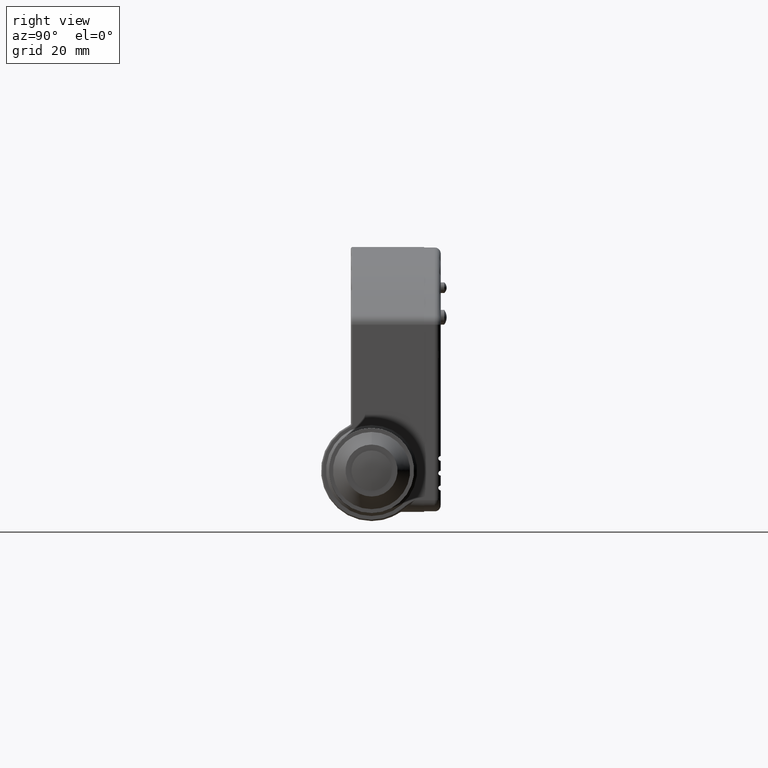
[diagram: clean part render]
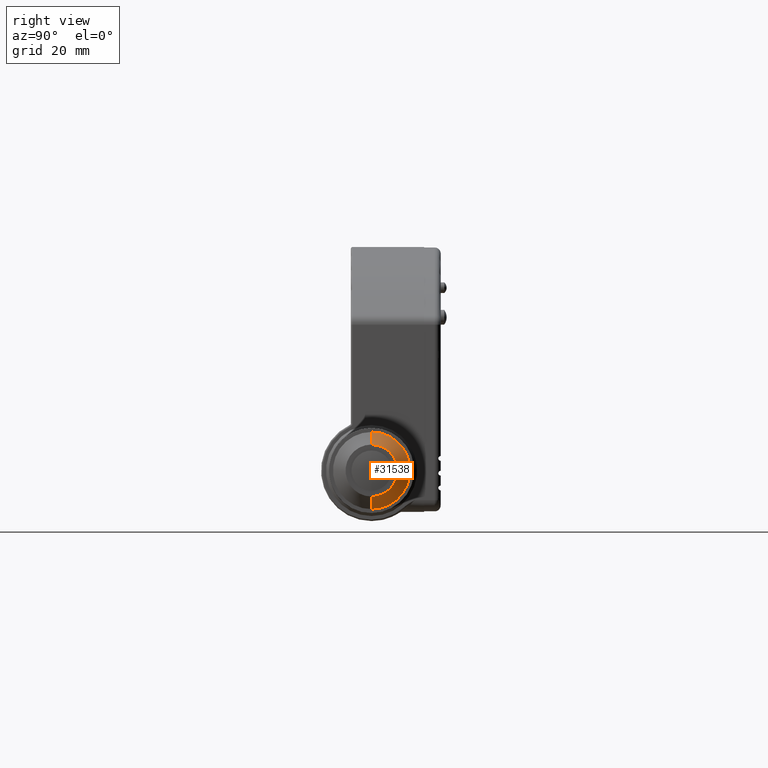
[diagram: same view with one face highlighted and labeled with its STEP entity id]
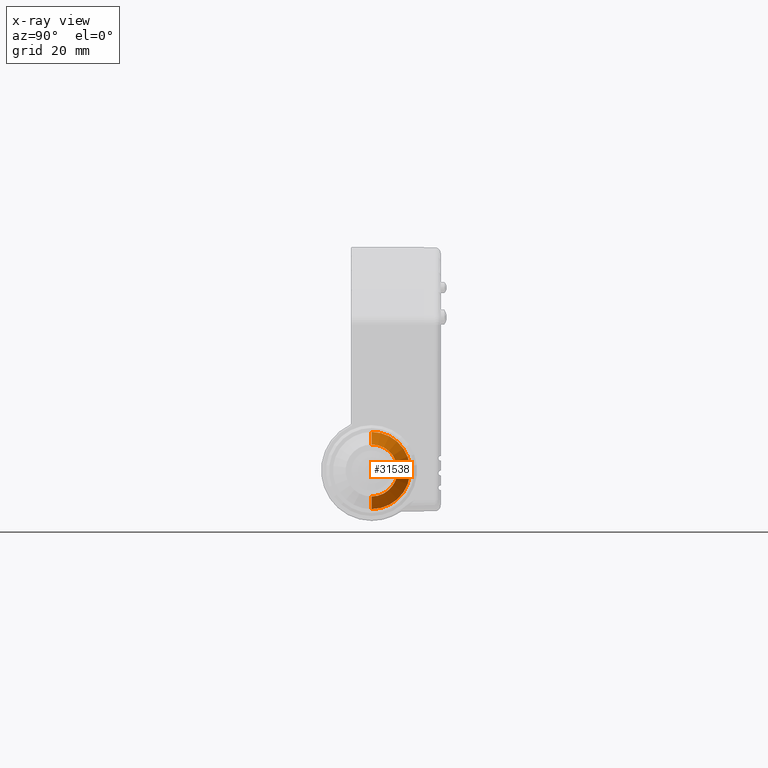
[diagram: x-ray of the same camera — body ghosted, the highlighted face saturated]
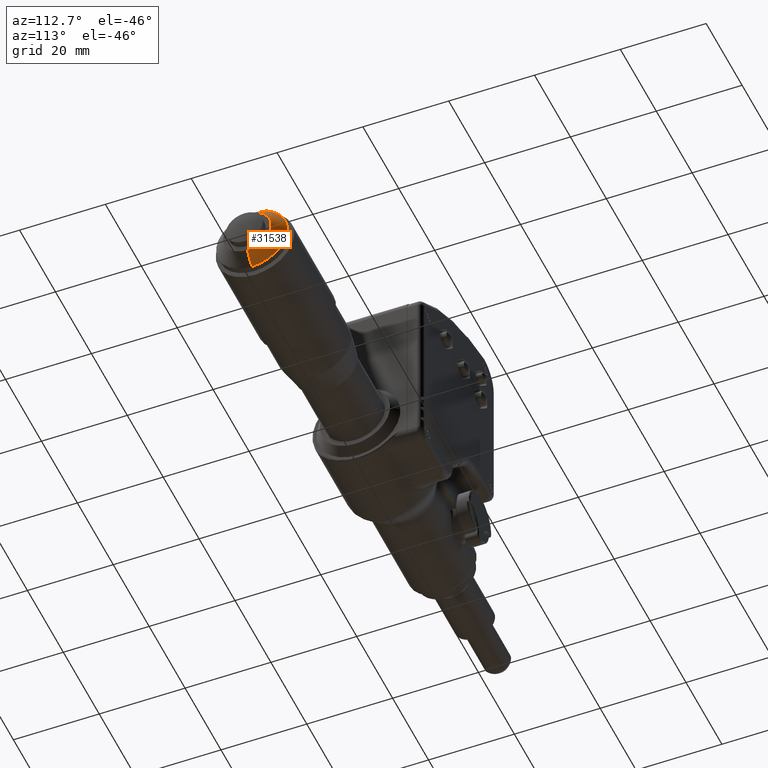
[diagram: same view with one face highlighted and labeled with its STEP entity id]
A machine part, right view. The second image highlights one B-rep face of the part: STEP entity #31538.
The next image is the same camera in x-ray: the body ghosted, the highlighted face saturated — about 0% of this face is hidden behind the body in this view.
A second angle (auxiliary view) of the same face is appended — the face is thin or edge-on in the first view.
In plain terms, the highlighted toroidal blend (fillet) surface has major radius 19.9018 mm and minor (blend) radius 19.05 mm.
Its self-contained STEP definition (entity closure, byte-faithful):
#31322 = EDGE_CURVE ( 'NONE', #31324, #31326, #46430, .T. ) ;
#31324 = VERTEX_POINT ( 'NONE', #46424 ) ;
#31326 = VERTEX_POINT ( 'NONE', #46423 ) ;
#31450 = EDGE_CURVE ( 'NONE', #31326, #31452, #46779, .T. ) ;
#31452 = VERTEX_POINT ( 'NONE', #46775 ) ;
#31457 = VERTEX_POINT ( 'NONE', #46769 ) ;
#31459 = EDGE_CURVE ( 'NONE', #31324, #31457, #46767, .T. ) ;
#31494 = ORIENTED_EDGE ( 'NONE', *, *, #31450, .F. ) ;
#31496 = ORIENTED_EDGE ( 'NONE', *, *, #31322, .F. ) ;
#31498 = ORIENTED_EDGE ( 'NONE', *, *, #31459, .T. ) ;
#31500 = ORIENTED_EDGE ( 'NONE', *, *, #31526, .T. ) ;
#31526 = EDGE_CURVE ( 'NONE', #31457, #31452, #46940, .T. ) ;
#31538 = ADVANCED_FACE ( 'NONE', ( #46935 ), #46917, .F. ) ;
#31541 = EDGE_LOOP ( 'NONE', ( #31494, #31496, #31498, #31500 ) ) ;
#46423 = CARTESIAN_POINT ( 'NONE',  ( 4.185000000000000500, 4.002221379989768000E-017, -0.3268169699999997100 ) ) ;
#46424 = CARTESIAN_POINT ( 'NONE',  ( 4.185000000000000500, 0.0000000000000000000, 0.3268169699999997100 ) ) ;
#46425 = DIRECTION ( 'NONE',  ( 0.0000000000000000000, 0.0000000000000000000, 1.000000000000000000 ) ) ;
#46426 = DIRECTION ( 'NONE',  ( -1.000000000000000000, 0.0000000000000000000, 0.0000000000000000000 ) ) ;
#46428 = CARTESIAN_POINT ( 'NONE',  ( 4.185000000000000500, 0.0000000000000000000, 0.0000000000000000000 ) ) ;
#46429 = AXIS2_PLACEMENT_3D ( 'NONE', #46428, #46426, #46425 ) ;
#46430 = CIRCLE ( 'NONE', #46429, 0.3268169700000001500 ) ;
#46763 = DIRECTION ( 'NONE',  ( 0.0000000000000000000, 0.0000000000000000000, -1.000000000000000000 ) ) ;
#46764 = DIRECTION ( 'NONE',  ( 0.0000000000000000000, -1.000000000000000000, 0.0000000000000000000 ) ) ;
#46765 = CARTESIAN_POINT ( 'NONE',  ( 4.779901991869283300, 0.0000000000000000000, 0.7835352858906146100 ) ) ;
#46766 = AXIS2_PLACEMENT_3D ( 'NONE', #46765, #46764, #46763 ) ;
#46767 = CIRCLE ( 'NONE', #46766, 0.7500000000000002200 ) ;
#46769 = CARTESIAN_POINT ( 'NONE',  ( 4.285000000000000100, 0.0000000000000000000, 0.2200000000000001700 ) ) ;
#46775 = CARTESIAN_POINT ( 'NONE',  ( 4.285000000000000100, 3.348177679199501200E-017, -0.2200000000000001700 ) ) ;
#46776 = DIRECTION ( 'NONE',  ( 0.0000000000000000000, -1.224606353822377300E-016, 1.000000000000000000 ) ) ;
#46777 = DIRECTION ( 'NONE',  ( 0.0000000000000000000, 1.000000000000000000, 1.224606353822377300E-016 ) ) ;
#46778 = AXIS2_PLACEMENT_3D ( 'NONE', #46785, #46777, #46776 ) ;
#46779 = CIRCLE ( 'NONE', #46778, 0.7500000000000002200 ) ;
#46785 = CARTESIAN_POINT ( 'NONE',  ( 4.779901991869283300, 9.595222895456794400E-017, -0.7835352858906146100 ) ) ;
#46917 = TOROIDAL_SURFACE ( 'NONE', #46976, 0.7835352858906146100, 0.7500000000000002200 ) ;
#46935 = FACE_OUTER_BOUND ( 'NONE', #31541, .T. ) ;
#46936 = DIRECTION ( 'NONE',  ( 0.0000000000000000000, 0.0000000000000000000, 1.000000000000000000 ) ) ;
#46937 = DIRECTION ( 'NONE',  ( -1.000000000000000000, 0.0000000000000000000, 0.0000000000000000000 ) ) ;
#46938 = CARTESIAN_POINT ( 'NONE',  ( 4.285000000000000100, 0.0000000000000000000, 0.0000000000000000000 ) ) ;
#46939 = AXIS2_PLACEMENT_3D ( 'NONE', #46938, #46937, #46936 ) ;
#46940 = CIRCLE ( 'NONE', #46939, 0.2200000000000001700 ) ;
#46973 = DIRECTION ( 'NONE',  ( 0.0000000000000000000, 0.0000000000000000000, 1.000000000000000000 ) ) ;
#46974 = DIRECTION ( 'NONE',  ( -1.000000000000000000, 0.0000000000000000000, 0.0000000000000000000 ) ) ;
#46975 = CARTESIAN_POINT ( 'NONE',  ( 4.779901991869283300, 0.0000000000000000000, 0.0000000000000000000 ) ) ;
#46976 = AXIS2_PLACEMENT_3D ( 'NONE', #46975, #46974, #46973 ) ;